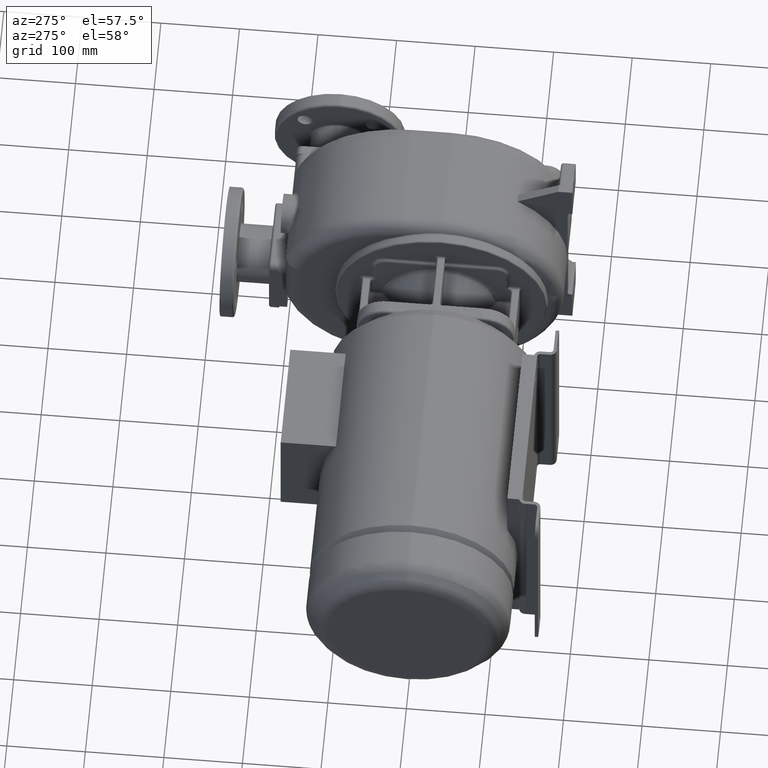
[diagram: clean part render]
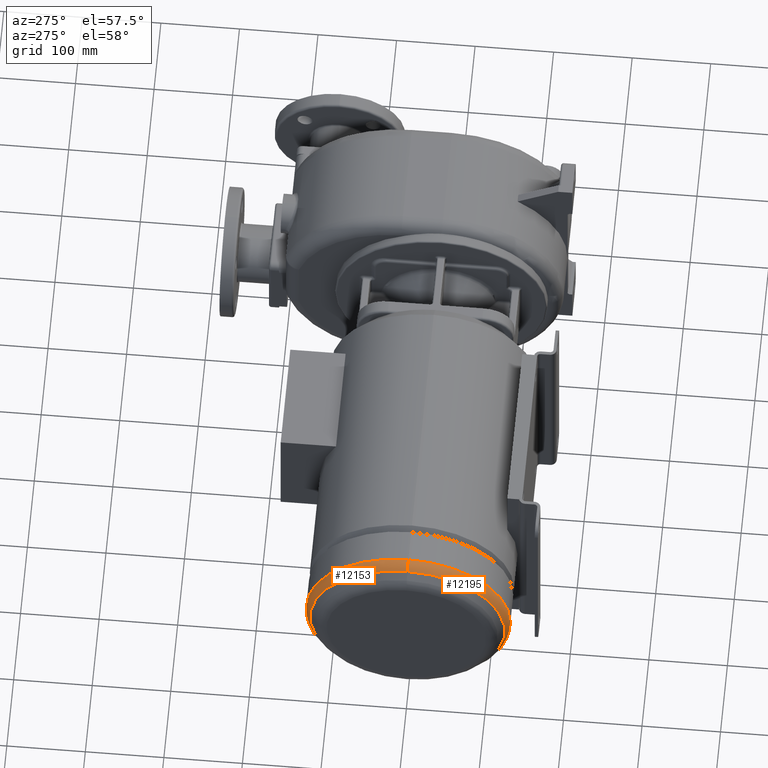
[diagram: same view with one multi-face feature highlighted, each face labeled with its STEP entity id]
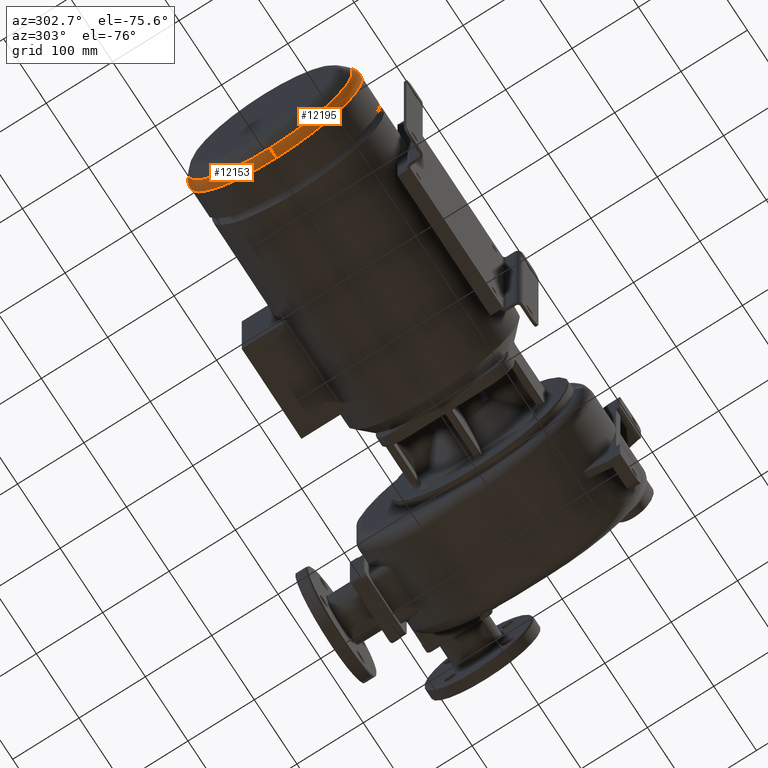
[diagram: same view with one multi-face feature highlighted, each face labeled with its STEP entity id]
A machine part, auxiliary view. The highlighted faces form ONE feature: a constant-radius fillet chain: 2 tangent blend faces with common blend radius 20 mm. The faces share edges in the B-rep.
A second angle (auxiliary view) of the same feature is appended — it is thin or edge-on in the first view.
Their STEP definitions:
[1] entity #12153 (Torus):
#21=CARTESIAN_POINT('',(1.414210960668E1,1.065814103640E-14,
9.947598300641E-14));
#22=DIRECTION('',(1.E0,0.E0,0.E0));
#23=DIRECTION('',(0.E0,1.308207678507E-10,-1.E0));
#24=AXIS2_PLACEMENT_3D('',#21,#22,#23);
#35=CARTESIAN_POINT('',(2.828424663247E1,-4.327582736607E-11,-1.1E2));
#36=DIRECTION('',(0.E0,1.E0,-3.934179371168E-13));
#37=DIRECTION('',(0.E0,-3.934179371168E-13,-1.E0));
#38=AXIS2_PLACEMENT_3D('',#35,#36,#37);
#40=CARTESIAN_POINT('',(2.828424663247E1,0.E0,0.E0));
#41=DIRECTION('',(1.E0,0.E0,0.E0));
#42=DIRECTION('',(0.E0,0.E0,-1.E0));
#43=AXIS2_PLACEMENT_3D('',#40,#41,#42);
#68=CARTESIAN_POINT('',(2.828424663247E1,4.319666846442E-11,1.1E2));
#69=DIRECTION('',(0.E0,-1.E0,3.926980268742E-13));
#70=DIRECTION('',(0.E0,3.926980268742E-13,1.E0));
#71=AXIS2_PLACEMENT_3D('',#68,#69,#70);
#10717=CARTESIAN_POINT('',(2.828424663247E1,1.592040838892E-14,1.3E2));
#10718=CARTESIAN_POINT('',(2.828424663247E1,-3.184081677783E-14,-1.3E2));
#10719=VERTEX_POINT('',#10717);
#10720=VERTEX_POINT('',#10718);
#10721=CARTESIAN_POINT('',(1.414210960668E1,-1.624040311198E-8,
1.241421342217E2));
#10722=CARTESIAN_POINT('',(1.414210960668E1,1.624038594324E-8,
-1.241421342217E2));
#10723=VERTEX_POINT('',#10721);
#10724=VERTEX_POINT('',#10722);
#12139=CARTESIAN_POINT('',(2.828424663247E1,0.E0,0.E0));
#12140=DIRECTION('',(1.E0,0.E0,0.E0));
#12141=DIRECTION('',(0.E0,-6.902168524707E-3,-9.999761797511E-1));
#12142=AXIS2_PLACEMENT_3D('',#12139,#12140,#12141);
#12143=TOROIDAL_SURFACE('',#12142,1.1E2,2.E1);
#12145=ORIENTED_EDGE('',*,*,#12144,.T.);
#12147=ORIENTED_EDGE('',*,*,#12146,.T.);
#12148=ORIENTED_EDGE('',*,*,#12129,.F.);
#12150=ORIENTED_EDGE('',*,*,#12149,.F.);
#12151=EDGE_LOOP('',(#12145,#12147,#12148,#12150));
#12152=FACE_OUTER_BOUND('',#12151,.F.);
#12153=ADVANCED_FACE('',(#12152),#12143,.T.);
#25=CIRCLE('',#24,1.241421342217E2);
#39=CIRCLE('',#38,2.E1);
#44=CIRCLE('',#43,1.3E2);
#72=CIRCLE('',#71,2.E1);
#12129=EDGE_CURVE('',#10724,#10723,#25,.T.);
#12144=EDGE_CURVE('',#10720,#10719,#44,.T.);
#12146=EDGE_CURVE('',#10719,#10723,#72,.T.);
#12149=EDGE_CURVE('',#10720,#10724,#39,.T.);
[2] entity #12195 (Torus):
#35=CARTESIAN_POINT('',(2.828424663247E1,-4.327582736607E-11,-1.1E2));
#36=DIRECTION('',(0.E0,1.E0,-3.934179371168E-13));
#37=DIRECTION('',(0.E0,-3.934179371168E-13,-1.E0));
#38=AXIS2_PLACEMENT_3D('',#35,#36,#37);
#54=CARTESIAN_POINT('',(2.828424663247E1,0.E0,0.E0));
#55=DIRECTION('',(1.E0,0.E0,0.E0));
#56=DIRECTION('',(0.E0,0.E0,1.E0));
#57=AXIS2_PLACEMENT_3D('',#54,#55,#56);
#68=CARTESIAN_POINT('',(2.828424663247E1,4.319666846442E-11,1.1E2));
#69=DIRECTION('',(0.E0,-1.E0,3.926980268742E-13));
#70=DIRECTION('',(0.E0,3.926980268742E-13,1.E0));
#71=AXIS2_PLACEMENT_3D('',#68,#69,#70);
#73=CARTESIAN_POINT('',(1.414210960668E1,8.171241461241E-14,
-1.065814103640E-13));
#74=DIRECTION('',(1.E0,0.E0,0.E0));
#75=DIRECTION('',(0.E0,-1.308216982592E-10,1.E0));
#76=AXIS2_PLACEMENT_3D('',#73,#74,#75);
#10717=CARTESIAN_POINT('',(2.828424663247E1,1.592040838892E-14,1.3E2));
#10718=CARTESIAN_POINT('',(2.828424663247E1,-3.184081677783E-14,-1.3E2));
#10719=VERTEX_POINT('',#10717);
#10720=VERTEX_POINT('',#10718);
#10721=CARTESIAN_POINT('',(1.414210960668E1,-1.624040311198E-8,
1.241421342217E2));
#10722=CARTESIAN_POINT('',(1.414210960668E1,1.624038594324E-8,
-1.241421342217E2));
#10723=VERTEX_POINT('',#10721);
#10724=VERTEX_POINT('',#10722);
#12183=CARTESIAN_POINT('',(2.828424663247E1,0.E0,0.E0));
#12184=DIRECTION('',(1.E0,0.E0,0.E0));
#12185=DIRECTION('',(0.E0,6.902168524708E-3,9.999761797511E-1));
#12186=AXIS2_PLACEMENT_3D('',#12183,#12184,#12185);
#12187=TOROIDAL_SURFACE('',#12186,1.1E2,2.E1);
#12188=ORIENTED_EDGE('',*,*,#12174,.T.);
#12189=ORIENTED_EDGE('',*,*,#12149,.T.);
#12191=ORIENTED_EDGE('',*,*,#12190,.F.);
#12192=ORIENTED_EDGE('',*,*,#12146,.F.);
#12193=EDGE_LOOP('',(#12188,#12189,#12191,#12192));
#12194=FACE_OUTER_BOUND('',#12193,.F.);
#12195=ADVANCED_FACE('',(#12194),#12187,.T.);
#39=CIRCLE('',#38,2.E1);
#58=CIRCLE('',#57,1.3E2);
#72=CIRCLE('',#71,2.E1);
#77=CIRCLE('',#76,1.241421342217E2);
#12146=EDGE_CURVE('',#10719,#10723,#72,.T.);
#12149=EDGE_CURVE('',#10720,#10724,#39,.T.);
#12174=EDGE_CURVE('',#10719,#10720,#58,.T.);
#12190=EDGE_CURVE('',#10723,#10724,#77,.T.);